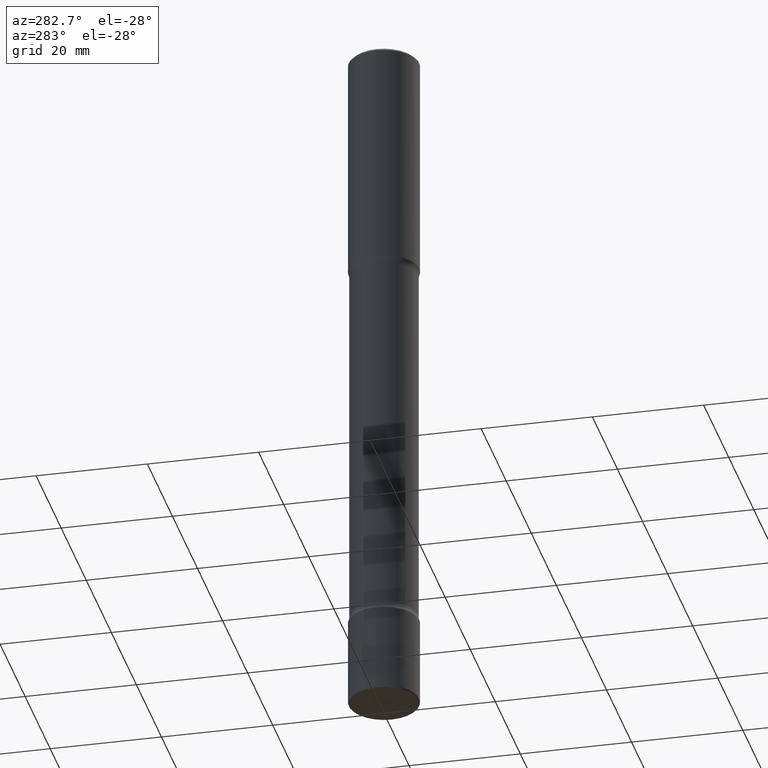
[diagram: clean part render]
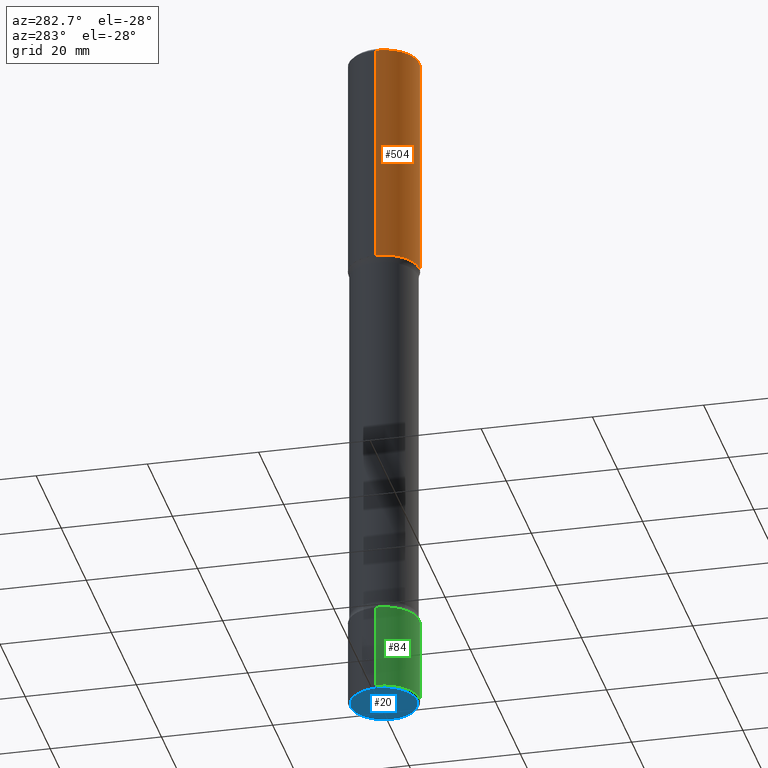
[diagram: same view with three faces highlighted in distinct colors, each labeled with its STEP entity id]
A machine part, auxiliary view with three faces highlighted in distinct colors.
Their STEP definitions:

[orange] entity #504 — the highlighted cylindrical surface (edge-blend (fillet) strip) has radius 6.35 mm, axis along (-0, 0, 1).
#6 = ORIENTED_EDGE ( 'NONE', *, *, #492, .F. ) ;
#99 = DIRECTION ( 'NONE',  ( 1.000000000000000000, -6.982962677686267499E-15, 0.000000000000000000 ) ) ;
#102 = DIRECTION ( 'NONE',  ( 1.000000000000000000, -6.982962677686267499E-15, 4.876176775795936353E-29 ) ) ;
#106 = EDGE_CURVE ( 'NONE', #232, #208, #218, .T. ) ;
#113 = CIRCLE ( 'NONE', #122, 0.2500000000000003331 ) ;
#122 = AXIS2_PLACEMENT_3D ( 'NONE', #306, #226, #468 ) ;
#126 = AXIS2_PLACEMENT_3D ( 'NONE', #142, #145, #99 ) ;
#130 = CARTESIAN_POINT ( 'NONE',  ( -0.2500000000000001110, 1.675911042644704563E-15, -0.02000000000000005246 ) ) ;
#142 = CARTESIAN_POINT ( 'NONE',  ( 4.890937612370285420E-31, -6.982962677686308865E-17, -0.02000000000000005246 ) ) ;
#145 = DIRECTION ( 'NONE',  ( -2.445468806185136597E-29, 3.491481338843145583E-15, 1.000000000000000000 ) ) ;
#150 = ORIENTED_EDGE ( 'NONE', *, *, #321, .T. ) ;
#164 = ORIENTED_EDGE ( 'NONE', *, *, #273, .T. ) ;
#178 = CIRCLE ( 'NONE', #126, 0.2500000000000001110 ) ;
#195 = CYLINDRICAL_SURFACE ( 'NONE', #479, 0.2500000000000002220 ) ;
#199 = VERTEX_POINT ( 'NONE', #559 ) ;
#208 = VERTEX_POINT ( 'NONE', #130 ) ;
#215 = DIRECTION ( 'NONE',  ( -2.445468806185136877E-29, 3.491481338843145188E-15, 1.000000000000000000 ) ) ;
#218 = LINE ( 'NONE', #254, #247 ) ;
#222 = VECTOR ( 'NONE', #341, 39.37007874015748143 ) ;
#226 = DIRECTION ( 'NONE',  ( -2.445468806185136597E-29, 3.491481338843145583E-15, 1.000000000000000000 ) ) ;
#232 = VERTEX_POINT ( 'NONE', #422 ) ;
#236 = VERTEX_POINT ( 'NONE', #553 ) ;
#247 = VECTOR ( 'NONE', #215, 39.37007874015748143 ) ;
#254 = CARTESIAN_POINT ( 'NONE',  ( -0.2500000000000002220, 1.776356839400252042E-15, -1.229733772563727566E-29 ) ) ;
#273 = EDGE_CURVE ( 'NONE', #236, #199, #474, .T. ) ;
#306 = CARTESIAN_POINT ( 'NONE',  ( 3.973886810050846970E-29, -5.673657175620112213E-15, -1.625000000000000000 ) ) ;
#318 = DIRECTION ( 'NONE',  ( -2.445468806185136597E-29, 3.491481338843145583E-15, 1.000000000000000000 ) ) ;
#321 = EDGE_CURVE ( 'NONE', #232, #236, #113, .T. ) ;
#341 = DIRECTION ( 'NONE',  ( -2.445468806185136877E-29, 3.491481338843145188E-15, 1.000000000000000000 ) ) ;
#356 = ORIENTED_EDGE ( 'NONE', *, *, #106, .F. ) ;
#394 = FACE_OUTER_BOUND ( 'NONE', #522, .T. ) ;
#422 = CARTESIAN_POINT ( 'NONE',  ( -0.2500000000000003331, -1.095386561798233741E-15, -1.625000000000000000 ) ) ;
#468 = DIRECTION ( 'NONE',  ( 1.000000000000000000, -6.982962677686269077E-15, 0.000000000000000000 ) ) ;
#474 = LINE ( 'NONE', #512, #222 ) ;
#479 = AXIS2_PLACEMENT_3D ( 'NONE', #486, #318, #102 ) ;
#486 = CARTESIAN_POINT ( 'NONE',  ( 0.000000000000000000, 0.000000000000000000, 0.000000000000000000 ) ) ;
#492 = EDGE_CURVE ( 'NONE', #208, #199, #178, .T. ) ;
#504 = ADVANCED_FACE ( 'NONE', ( #394 ), #195, .T. ) ;
#512 = CARTESIAN_POINT ( 'NONE',  ( 0.2500000000000002220, -1.745740669421568453E-15, 1.219044193948985209E-29 ) ) ;
#522 = EDGE_LOOP ( 'NONE', ( #356, #150, #164, #6 ) ) ;
#553 = CARTESIAN_POINT ( 'NONE',  ( 0.2500000000000003331, -7.419397845041682046E-15, -1.625000000000000000 ) ) ;
#559 = CARTESIAN_POINT ( 'NONE',  ( 0.2500000000000001110, -1.784954126219746583E-15, -0.02000000000000005246 ) ) ;

[blue] entity #20 — the highlighted planar face has unit normal (0, -0, -1).
#20 = ADVANCED_FACE ( 'NONE', ( #105 ), #365, .T. ) ;
#73 = VERTEX_POINT ( 'NONE', #165 ) ;
#105 = FACE_OUTER_BOUND ( 'NONE', #296, .T. ) ;
#165 = CARTESIAN_POINT ( 'NONE',  ( 0.2350000000000001255, -1.909840292347200004E-14, -5.000000000000000000 ) ) ;
#179 = DIRECTION ( 'NONE',  ( -2.445468806185136597E-29, 3.491481338843145583E-15, 1.000000000000000000 ) ) ;
#183 = CARTESIAN_POINT ( 'NONE',  ( 1.222734403092568523E-28, -1.745740669421572989E-14, -5.000000000000000000 ) ) ;
#241 = EDGE_CURVE ( 'NONE', #73, #430, #357, .T. ) ;
#264 = AXIS2_PLACEMENT_3D ( 'NONE', #534, #286, #446 ) ;
#267 = DIRECTION ( 'NONE',  ( -2.445468806185136597E-29, 3.491481338843145583E-15, 1.000000000000000000 ) ) ;
#280 = CARTESIAN_POINT ( 'NONE',  ( -0.2350000000000001255, -1.570815444995615772E-14, -5.000000000000000000 ) ) ;
#286 = DIRECTION ( 'NONE',  ( 2.438088387897960049E-29, -3.491481338843145188E-15, -1.000000000000000000 ) ) ;
#296 = EDGE_LOOP ( 'NONE', ( #516, #351 ) ) ;
#333 = CIRCLE ( 'NONE', #408, 0.2350000000000001255 ) ;
#350 = CARTESIAN_POINT ( 'NONE',  ( 1.222734403092568523E-28, -1.745740669421572989E-14, -5.000000000000000000 ) ) ;
#351 = ORIENTED_EDGE ( 'NONE', *, *, #402, .F. ) ;
#357 = CIRCLE ( 'NONE', #488, 0.2350000000000001255 ) ;
#365 = PLANE ( 'NONE',  #264 ) ;
#381 = DIRECTION ( 'NONE',  ( 1.000000000000000000, -6.982962677686258822E-15, 0.000000000000000000 ) ) ;
#389 = DIRECTION ( 'NONE',  ( 1.000000000000000000, -6.982962677686258822E-15, 0.000000000000000000 ) ) ;
#402 = EDGE_CURVE ( 'NONE', #430, #73, #333, .T. ) ;
#408 = AXIS2_PLACEMENT_3D ( 'NONE', #350, #267, #389 ) ;
#430 = VERTEX_POINT ( 'NONE', #280 ) ;
#446 = DIRECTION ( 'NONE',  ( -1.000000000000000000, 6.982962677686265922E-15, -4.876176775795935793E-29 ) ) ;
#488 = AXIS2_PLACEMENT_3D ( 'NONE', #183, #179, #381 ) ;
#516 = ORIENTED_EDGE ( 'NONE', *, *, #241, .F. ) ;
#534 = CARTESIAN_POINT ( 'NONE',  ( 1.222734403092568523E-28, -1.745740669421572989E-14, -5.000000000000000000 ) ) ;

[green] entity #84 — the highlighted cylindrical surface (edge-blend (fillet) strip) has radius 6.35 mm, axis along (-0, 0, 1).
#2 = DIRECTION ( 'NONE',  ( 1.000000000000000000, -6.982962677686264344E-15, 0.000000000000000000 ) ) ;
#3 = CARTESIAN_POINT ( 'NONE',  ( 1.069892602705997261E-28, -1.527523085743876365E-14, -4.375000000000000000 ) ) ;
#15 = ORIENTED_EDGE ( 'NONE', *, *, #154, .F. ) ;
#22 = DIRECTION ( 'NONE',  ( -2.445468806185136877E-29, 3.491481338843145188E-15, 1.000000000000000000 ) ) ;
#30 = EDGE_CURVE ( 'NONE', #197, #501, #383, .T. ) ;
#55 = CARTESIAN_POINT ( 'NONE',  ( 0.2500000000000003886, -1.915077514355464672E-14, -4.984999999999999432 ) ) ;
#63 = CARTESIAN_POINT ( 'NONE',  ( 1.219066199883290567E-28, -1.740503447413308005E-14, -4.984999999999999432 ) ) ;
#72 = CYLINDRICAL_SURFACE ( 'NONE', #292, 0.2500000000000002220 ) ;
#84 = ADVANCED_FACE ( 'NONE', ( #409 ), #72, .T. ) ;
#92 = DIRECTION ( 'NONE',  ( -2.445468806185136597E-29, 3.491481338843145583E-15, 1.000000000000000000 ) ) ;
#93 = VERTEX_POINT ( 'NONE', #328 ) ;
#120 = DIRECTION ( 'NONE',  ( -2.445468806185136597E-29, 3.491481338843145583E-15, 1.000000000000000000 ) ) ;
#131 = CARTESIAN_POINT ( 'NONE',  ( -0.2500000000000003886, -1.562867763473282642E-14, -4.984999999999999432 ) ) ;
#154 = EDGE_CURVE ( 'NONE', #457, #93, #384, .T. ) ;
#157 = DIRECTION ( 'NONE',  ( 1.000000000000000000, -6.982962677686265922E-15, 0.000000000000000000 ) ) ;
#174 = ORIENTED_EDGE ( 'NONE', *, *, #544, .T. ) ;
#192 = LINE ( 'NONE', #435, #399 ) ;
#197 = VERTEX_POINT ( 'NONE', #131 ) ;
#205 = VECTOR ( 'NONE', #22, 39.37007874015748143 ) ;
#246 = CARTESIAN_POINT ( 'NONE',  ( 0.2500000000000002220, -1.745740669421568255E-15, 1.219044193948984929E-29 ) ) ;
#292 = AXIS2_PLACEMENT_3D ( 'NONE', #548, #120, #461 ) ;
#294 = ORIENTED_EDGE ( 'NONE', *, *, #30, .T. ) ;
#310 = DIRECTION ( 'NONE',  ( -2.445468806185136877E-29, 3.491481338843145188E-15, 1.000000000000000000 ) ) ;
#328 = CARTESIAN_POINT ( 'NONE',  ( 0.2500000000000002220, -1.702097152686033033E-14, -4.375000000000000000 ) ) ;
#331 = ORIENTED_EDGE ( 'NONE', *, *, #451, .F. ) ;
#352 = CARTESIAN_POINT ( 'NONE',  ( -0.2500000000000002220, -1.456377582638566980E-14, -4.375000000000000000 ) ) ;
#383 = CIRCLE ( 'NONE', #453, 0.2500000000000001665 ) ;
#384 = CIRCLE ( 'NONE', #454, 0.2500000000000002220 ) ;
#399 = VECTOR ( 'NONE', #310, 39.37007874015748143 ) ;
#405 = DIRECTION ( 'NONE',  ( -2.445468806185136597E-29, 3.491481338843145583E-15, 1.000000000000000000 ) ) ;
#409 = FACE_OUTER_BOUND ( 'NONE', #480, .T. ) ;
#435 = CARTESIAN_POINT ( 'NONE',  ( -0.2500000000000002220, 1.776356839400252042E-15, -1.229733772563727566E-29 ) ) ;
#445 = LINE ( 'NONE', #246, #205 ) ;
#451 = EDGE_CURVE ( 'NONE', #197, #457, #192, .T. ) ;
#453 = AXIS2_PLACEMENT_3D ( 'NONE', #63, #405, #157 ) ;
#454 = AXIS2_PLACEMENT_3D ( 'NONE', #3, #92, #2 ) ;
#457 = VERTEX_POINT ( 'NONE', #352 ) ;
#461 = DIRECTION ( 'NONE',  ( 1.000000000000000000, -6.982962677686266711E-15, 4.876176775795935232E-29 ) ) ;
#480 = EDGE_LOOP ( 'NONE', ( #331, #294, #174, #15 ) ) ;
#501 = VERTEX_POINT ( 'NONE', #55 ) ;
#544 = EDGE_CURVE ( 'NONE', #501, #93, #445, .T. ) ;
#548 = CARTESIAN_POINT ( 'NONE',  ( 0.000000000000000000, 0.000000000000000000, 0.000000000000000000 ) ) ;